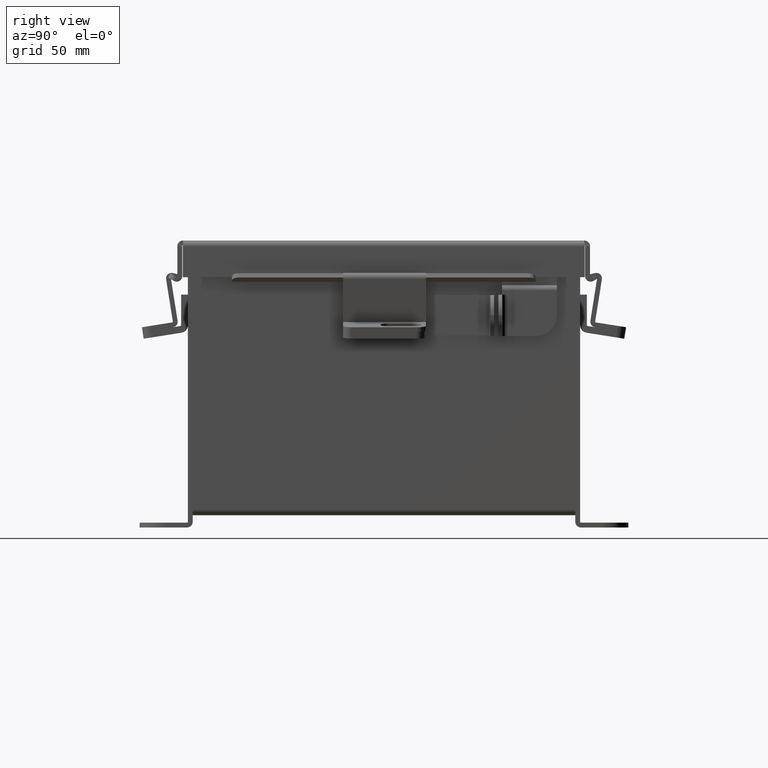
[diagram: clean part render]
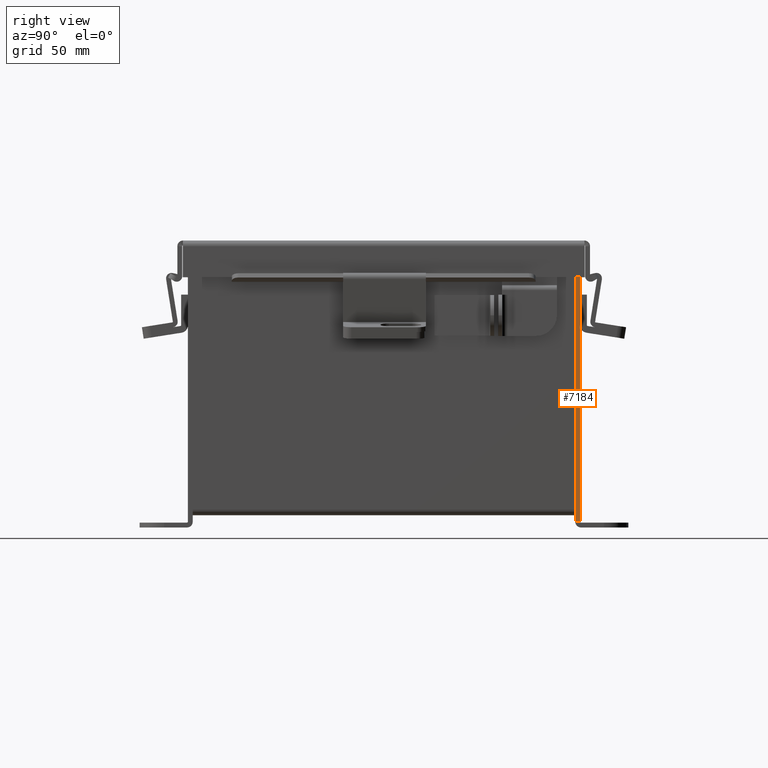
[diagram: same view with one face highlighted and labeled with its STEP entity id]
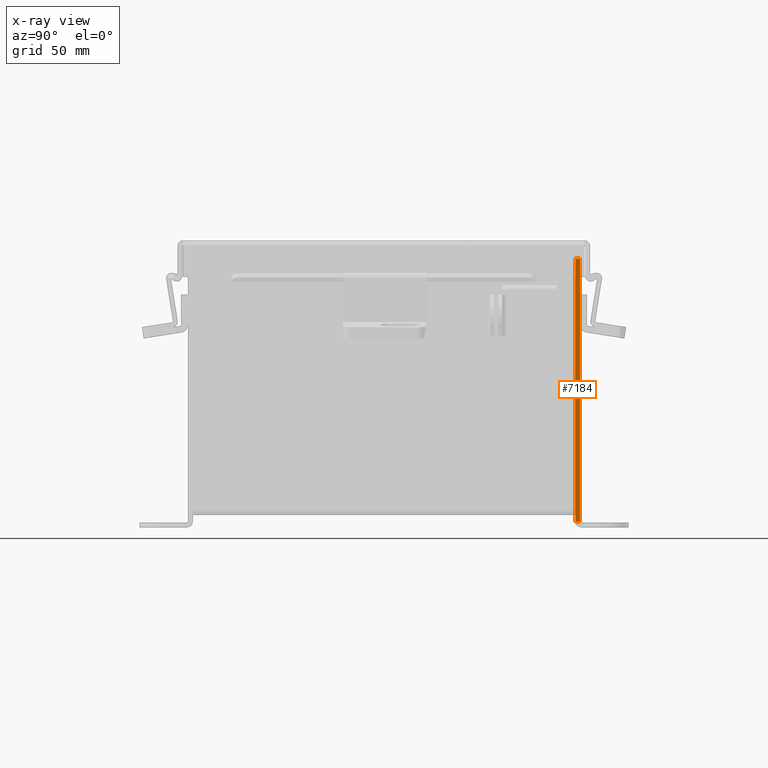
[diagram: x-ray of the same camera — body ghosted, the highlighted face saturated]
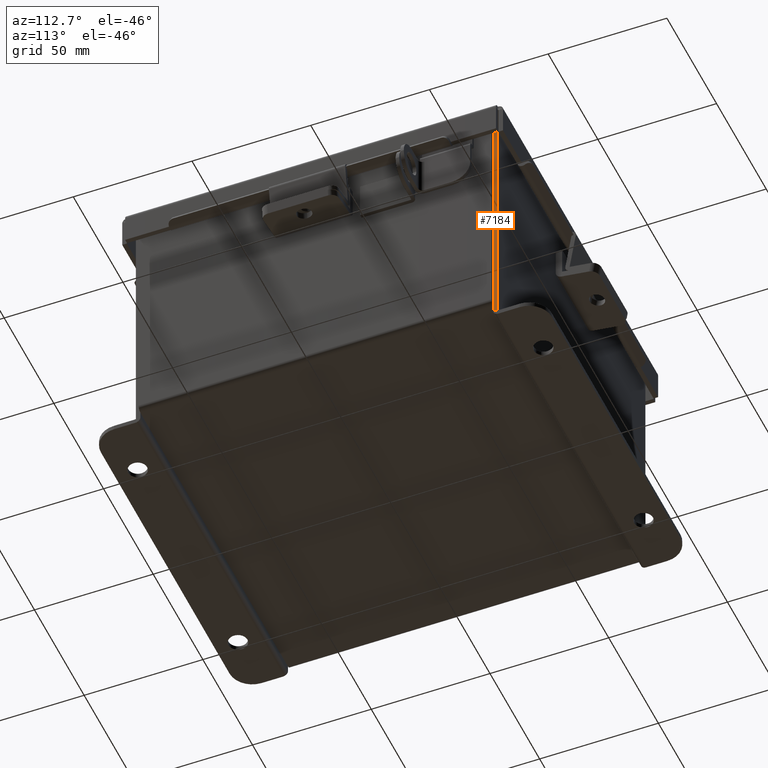
[diagram: same view with one face highlighted and labeled with its STEP entity id]
A machine part, right view. The second image highlights one B-rep face of the part: STEP entity #7184.
The next image is the same camera in x-ray: the body ghosted, the highlighted face saturated — about 0% of this face is hidden behind the body in this view.
A second angle (auxiliary view) of the same face is appended — the face is thin or edge-on in the first view.
In plain terms, the highlighted planar face has unit normal (1, 0, 0).
Its self-contained STEP definition (entity closure, byte-faithful):
#302 = DIRECTION ( 'NONE',  ( 0.0000000000000000000, 0.0000000000000000000, -1.000000000000000000 ) ) ;
#303 = VECTOR ( 'NONE', #302, 39.37007874015748100 ) ;
#623 = ORIENTED_EDGE ( 'NONE', *, *, #7060, .F. ) ;
#1309 = DIRECTION ( 'NONE',  ( 0.0000000000000000000, 0.0000000000000000000, -1.000000000000000000 ) ) ;
#1395 = CARTESIAN_POINT ( 'NONE',  ( 2.925299999999999100, 0.0000000000000000000, -2.099299999999999100 ) ) ;
#1644 = DIRECTION ( 'NONE',  ( 0.0000000000000000000, 0.0000000000000000000, -1.000000000000000000 ) ) ;
#3213 = LINE ( 'NONE', #10156, #303 ) ;
#3391 = VERTEX_POINT ( 'NONE', #12262 ) ;
#3557 = VECTOR ( 'NONE', #1309, 39.37007874015748100 ) ;
#4051 = LINE ( 'NONE', #6921, #7675 ) ;
#4815 = VERTEX_POINT ( 'NONE', #1395 ) ;
#4826 = ORIENTED_EDGE ( 'NONE', *, *, #6262, .T. ) ;
#4877 = AXIS2_PLACEMENT_3D ( 'NONE', #12583, #8201, #1644 ) ;
#6219 = EDGE_CURVE ( 'NONE', #13579, #4815, #12672, .T. ) ;
#6262 = EDGE_CURVE ( 'NONE', #3391, #8149, #3213, .T. ) ;
#6921 = CARTESIAN_POINT ( 'NONE',  ( 2.925299999999999100, 0.0000000000000000000, -2.099299999999999100 ) ) ;
#7060 = EDGE_CURVE ( 'NONE', #4815, #8149, #4051, .T. ) ;
#7184 = ADVANCED_FACE ( 'NONE', ( #11451 ), #9276, .T. ) ;
#7386 = CARTESIAN_POINT ( 'NONE',  ( 2.925299999999999100, 0.0000000000000000000, 1.925300000000000900 ) ) ;
#7675 = VECTOR ( 'NONE', #10235, 39.37007874015748100 ) ;
#7974 = DIRECTION ( 'NONE',  ( 0.0000000000000000000, 1.000000000000000000, 0.0000000000000000000 ) ) ;
#8149 = VERTEX_POINT ( 'NONE', #13441 ) ;
#8201 = DIRECTION ( 'NONE',  ( 1.000000000000000000, -0.0000000000000000000, 0.0000000000000000000 ) ) ;
#9276 = PLANE ( 'NONE',  #4877 ) ;
#9506 = VECTOR ( 'NONE', #7974, 39.37007874015748100 ) ;
#10069 = EDGE_CURVE ( 'NONE', #3391, #13579, #12436, .T. ) ;
#10108 = CARTESIAN_POINT ( 'NONE',  ( 2.925299999999999100, 0.0000000000000000000, 1.925300000000000900 ) ) ;
#10156 = CARTESIAN_POINT ( 'NONE',  ( 2.925299999999999100, -0.07470000000000015500, 1.925300000000000900 ) ) ;
#10235 = DIRECTION ( 'NONE',  ( 0.0000000000000000000, -1.000000000000000000, 0.0000000000000000000 ) ) ;
#11071 = ORIENTED_EDGE ( 'NONE', *, *, #6219, .F. ) ;
#11282 = CARTESIAN_POINT ( 'NONE',  ( 2.925299999999999100, -0.07470000000000015500, 1.925300000000000900 ) ) ;
#11451 = FACE_OUTER_BOUND ( 'NONE', #13137, .T. ) ;
#12262 = CARTESIAN_POINT ( 'NONE',  ( 2.925299999999999100, -0.07470000000000015500, 1.925300000000000900 ) ) ;
#12436 = LINE ( 'NONE', #11282, #9506 ) ;
#12557 = ORIENTED_EDGE ( 'NONE', *, *, #10069, .F. ) ;
#12583 = CARTESIAN_POINT ( 'NONE',  ( 2.925299999999999100, -0.07470000000000015500, 1.925300000000000900 ) ) ;
#12672 = LINE ( 'NONE', #10108, #3557 ) ;
#13137 = EDGE_LOOP ( 'NONE', ( #11071, #12557, #4826, #623 ) ) ;
#13441 = CARTESIAN_POINT ( 'NONE',  ( 2.925299999999999100, -0.07470000000000015500, -2.099299999999999100 ) ) ;
#13579 = VERTEX_POINT ( 'NONE', #7386 ) ;